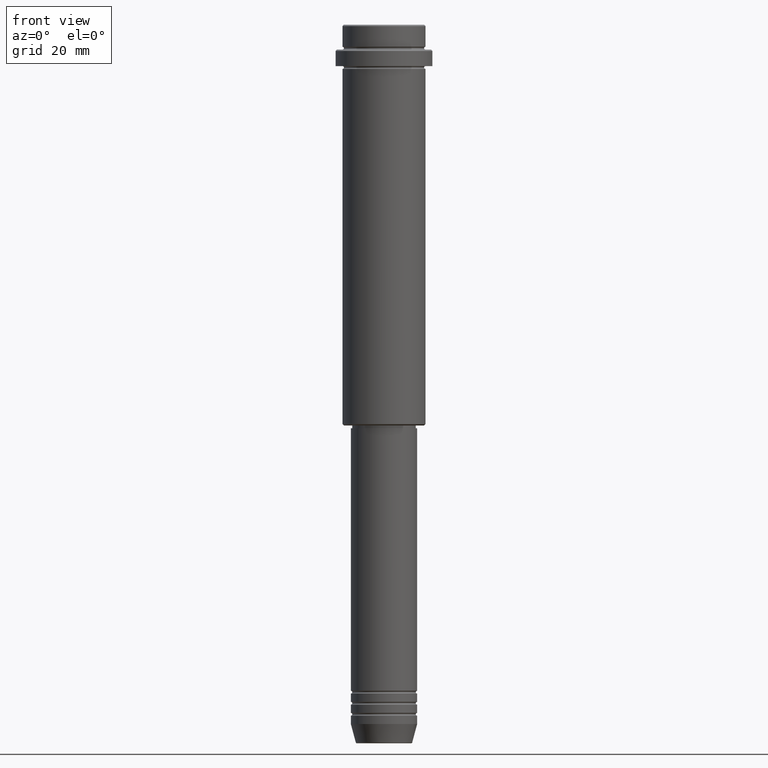
[diagram: clean part render]
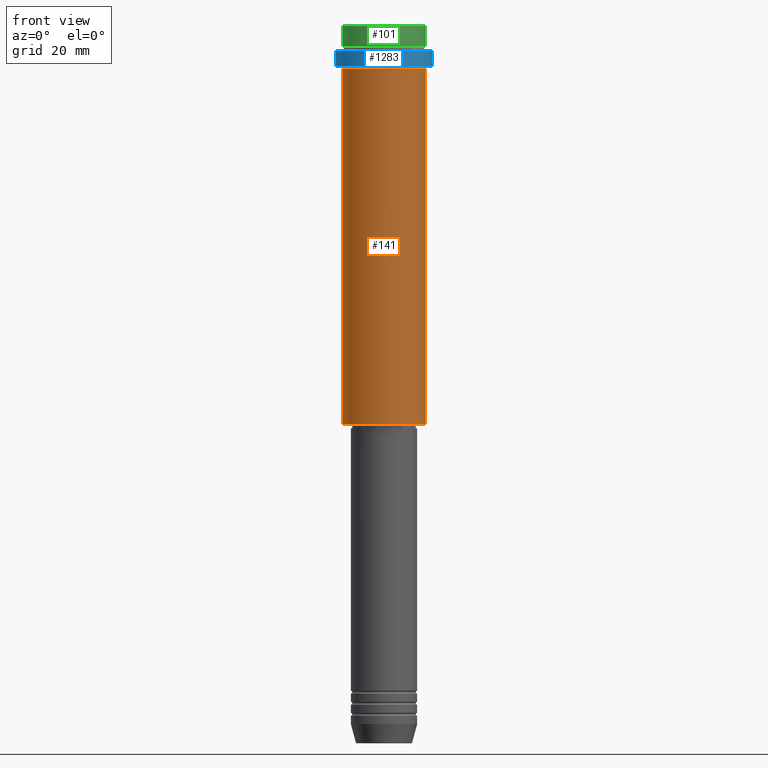
[diagram: same view with three faces highlighted in distinct colors, each labeled with its STEP entity id]
A machine part, front view with three faces highlighted in distinct colors.
Their STEP definitions:

[orange] entity #141 — the highlighted cylindrical surface (partial cylindrical patch) has radius 15 mm, axis along (-0, -0, 1).
#46 = DIRECTION ( 'NONE',  ( -0.000000000000000000, -0.000000000000000000, 1.000000000000000000 ) ) ;
#78 = VERTEX_POINT ( 'NONE', #553 ) ;
#141 = ADVANCED_FACE ( 'NONE', ( #1106 ), #1044, .T. ) ;
#149 = EDGE_CURVE ( 'NONE', #614, #78, #752, .T. ) ;
#166 = ORIENTED_EDGE ( 'NONE', *, *, #975, .T. ) ;
#174 = EDGE_LOOP ( 'NONE', ( #299, #456, #166, #576 ) ) ;
#248 = VECTOR ( 'NONE', #669, 1000.000000000000000 ) ;
#284 = DIRECTION ( 'NONE',  ( 1.000000000000000000, 0.000000000000000000, 0.000000000000000000 ) ) ;
#296 = CIRCLE ( 'NONE', #1095, 15.00000000000000000 ) ;
#299 = ORIENTED_EDGE ( 'NONE', *, *, #770, .F. ) ;
#386 = CARTESIAN_POINT ( 'NONE',  ( 0.000000000000000000, 0.000000000000000000, -16.00000000000000000 ) ) ;
#396 = CARTESIAN_POINT ( 'NONE',  ( -15.00000000000000000, 1.836970198721029589E-15, -144.5000000000000284 ) ) ;
#456 = ORIENTED_EDGE ( 'NONE', *, *, #1272, .T. ) ;
#457 = VECTOR ( 'NONE', #46, 1000.000000000000000 ) ;
#481 = CARTESIAN_POINT ( 'NONE',  ( 15.00000000000000000, 0.000000000000000000, -144.5000000000000284 ) ) ;
#553 = CARTESIAN_POINT ( 'NONE',  ( 15.00000000000000178, 0.000000000000000000, -16.00000000000000000 ) ) ;
#564 = CARTESIAN_POINT ( 'NONE',  ( -15.00000000000000000, 1.836970198721029589E-15, 0.000000000000000000 ) ) ;
#576 = ORIENTED_EDGE ( 'NONE', *, *, #149, .F. ) ;
#584 = CARTESIAN_POINT ( 'NONE',  ( 15.00000000000000000, 0.000000000000000000, 0.000000000000000000 ) ) ;
#614 = VERTEX_POINT ( 'NONE', #1034 ) ;
#669 = DIRECTION ( 'NONE',  ( -0.000000000000000000, -0.000000000000000000, 1.000000000000000000 ) ) ;
#712 = DIRECTION ( 'NONE',  ( -1.000000000000000000, 0.000000000000000000, 0.000000000000000000 ) ) ;
#752 = CIRCLE ( 'NONE', #1345, 15.00000000000000178 ) ;
#770 = EDGE_CURVE ( 'NONE', #1330, #614, #1175, .T. ) ;
#775 = AXIS2_PLACEMENT_3D ( 'NONE', #944, #1242, #841 ) ;
#841 = DIRECTION ( 'NONE',  ( 1.000000000000000000, 0.000000000000000000, 0.000000000000000000 ) ) ;
#844 = CARTESIAN_POINT ( 'NONE',  ( 0.000000000000000000, 0.000000000000000000, -144.5000000000000284 ) ) ;
#930 = DIRECTION ( 'NONE',  ( -0.000000000000000000, -0.000000000000000000, 1.000000000000000000 ) ) ;
#944 = CARTESIAN_POINT ( 'NONE',  ( 0.000000000000000000, 0.000000000000000000, 0.000000000000000000 ) ) ;
#975 = EDGE_CURVE ( 'NONE', #1280, #78, #1030, .T. ) ;
#1030 = LINE ( 'NONE', #584, #457 ) ;
#1034 = CARTESIAN_POINT ( 'NONE',  ( -15.00000000000000355, 1.836970198721029983E-15, -16.00000000000000000 ) ) ;
#1044 = CYLINDRICAL_SURFACE ( 'NONE', #775, 15.00000000000000000 ) ;
#1095 = AXIS2_PLACEMENT_3D ( 'NONE', #844, #930, #712 ) ;
#1106 = FACE_OUTER_BOUND ( 'NONE', #174, .T. ) ;
#1175 = LINE ( 'NONE', #564, #248 ) ;
#1242 = DIRECTION ( 'NONE',  ( -0.000000000000000000, -0.000000000000000000, 1.000000000000000000 ) ) ;
#1264 = DIRECTION ( 'NONE',  ( -0.000000000000000000, -0.000000000000000000, 1.000000000000000000 ) ) ;
#1272 = EDGE_CURVE ( 'NONE', #1330, #1280, #296, .T. ) ;
#1280 = VERTEX_POINT ( 'NONE', #481 ) ;
#1330 = VERTEX_POINT ( 'NONE', #396 ) ;
#1345 = AXIS2_PLACEMENT_3D ( 'NONE', #386, #1264, #284 ) ;

[blue] entity #1283 — the highlighted cylindrical surface (partial cylindrical patch) has radius 17.5 mm, axis along (-0, -0, 1).
#41 = CIRCLE ( 'NONE', #453, 17.50000000000000000 ) ;
#64 = CARTESIAN_POINT ( 'NONE',  ( -17.50000000000000000, 2.143131898507868248E-15, -9.500000000000001776 ) ) ;
#68 = VECTOR ( 'NONE', #694, 1000.000000000000000 ) ;
#93 = VERTEX_POINT ( 'NONE', #64 ) ;
#129 = CARTESIAN_POINT ( 'NONE',  ( 17.50000000000000000, 0.000000000000000000, -9.500000000000001776 ) ) ;
#161 = DIRECTION ( 'NONE',  ( -0.000000000000000000, -0.000000000000000000, 1.000000000000000000 ) ) ;
#201 = DIRECTION ( 'NONE',  ( -0.000000000000000000, -0.000000000000000000, 1.000000000000000000 ) ) ;
#229 = ORIENTED_EDGE ( 'NONE', *, *, #821, .F. ) ;
#288 = VERTEX_POINT ( 'NONE', #129 ) ;
#314 = CIRCLE ( 'NONE', #1048, 17.50000000000000000 ) ;
#342 = CARTESIAN_POINT ( 'NONE',  ( 0.000000000000000000, 0.000000000000000000, -15.00000000000000178 ) ) ;
#373 = CYLINDRICAL_SURFACE ( 'NONE', #1010, 17.50000000000000000 ) ;
#388 = EDGE_CURVE ( 'NONE', #288, #93, #314, .T. ) ;
#453 = AXIS2_PLACEMENT_3D ( 'NONE', #342, #201, #1195 ) ;
#465 = VERTEX_POINT ( 'NONE', #1015 ) ;
#498 = DIRECTION ( 'NONE',  ( 1.000000000000000000, 0.000000000000000000, 0.000000000000000000 ) ) ;
#533 = EDGE_CURVE ( 'NONE', #870, #465, #41, .T. ) ;
#558 = VECTOR ( 'NONE', #1237, 1000.000000000000000 ) ;
#611 = CARTESIAN_POINT ( 'NONE',  ( 0.000000000000000000, 0.000000000000000000, 0.000000000000000000 ) ) ;
#694 = DIRECTION ( 'NONE',  ( -0.000000000000000000, -0.000000000000000000, 1.000000000000000000 ) ) ;
#720 = ORIENTED_EDGE ( 'NONE', *, *, #533, .T. ) ;
#735 = EDGE_LOOP ( 'NONE', ( #229, #720, #1172, #849 ) ) ;
#791 = CARTESIAN_POINT ( 'NONE',  ( -17.50000000000000000, 2.143131898507868248E-15, 0.000000000000000000 ) ) ;
#821 = EDGE_CURVE ( 'NONE', #870, #93, #1300, .T. ) ;
#836 = EDGE_CURVE ( 'NONE', #465, #288, #1371, .T. ) ;
#839 = CARTESIAN_POINT ( 'NONE',  ( 17.50000000000000000, 0.000000000000000000, 0.000000000000000000 ) ) ;
#849 = ORIENTED_EDGE ( 'NONE', *, *, #388, .T. ) ;
#870 = VERTEX_POINT ( 'NONE', #1252 ) ;
#1010 = AXIS2_PLACEMENT_3D ( 'NONE', #611, #161, #498 ) ;
#1015 = CARTESIAN_POINT ( 'NONE',  ( 17.50000000000000000, 0.000000000000000000, -15.00000000000000178 ) ) ;
#1037 = DIRECTION ( 'NONE',  ( 1.000000000000000000, 0.000000000000000000, 0.000000000000000000 ) ) ;
#1048 = AXIS2_PLACEMENT_3D ( 'NONE', #1334, #1111, #1037 ) ;
#1111 = DIRECTION ( 'NONE',  ( 0.000000000000000000, 0.000000000000000000, -1.000000000000000000 ) ) ;
#1172 = ORIENTED_EDGE ( 'NONE', *, *, #836, .T. ) ;
#1195 = DIRECTION ( 'NONE',  ( 1.000000000000000000, 0.000000000000000000, 0.000000000000000000 ) ) ;
#1237 = DIRECTION ( 'NONE',  ( -0.000000000000000000, -0.000000000000000000, 1.000000000000000000 ) ) ;
#1252 = CARTESIAN_POINT ( 'NONE',  ( -17.50000000000000000, 2.143131898507868248E-15, -15.00000000000000178 ) ) ;
#1268 = FACE_OUTER_BOUND ( 'NONE', #735, .T. ) ;
#1283 = ADVANCED_FACE ( 'NONE', ( #1268 ), #373, .T. ) ;
#1300 = LINE ( 'NONE', #791, #68 ) ;
#1334 = CARTESIAN_POINT ( 'NONE',  ( 0.000000000000000000, 0.000000000000000000, -9.500000000000001776 ) ) ;
#1371 = LINE ( 'NONE', #839, #558 ) ;

[green] entity #101 — the highlighted cylindrical surface (partial cylindrical patch) has radius 15 mm, axis along (-0, -0, 1).
#26 = DIRECTION ( 'NONE',  ( 1.000000000000000000, 0.000000000000000000, 0.000000000000000000 ) ) ;
#30 = DIRECTION ( 'NONE',  ( -0.000000000000000000, -0.000000000000000000, 1.000000000000000000 ) ) ;
#101 = ADVANCED_FACE ( 'NONE', ( #992 ), #114, .T. ) ;
#106 = AXIS2_PLACEMENT_3D ( 'NONE', #581, #1009, #26 ) ;
#114 = CYLINDRICAL_SURFACE ( 'NONE', #664, 15.00000000000000000 ) ;
#125 = ORIENTED_EDGE ( 'NONE', *, *, #469, .F. ) ;
#177 = DIRECTION ( 'NONE',  ( -0.000000000000000000, -0.000000000000000000, 1.000000000000000000 ) ) ;
#194 = AXIS2_PLACEMENT_3D ( 'NONE', #970, #177, #725 ) ;
#226 = EDGE_CURVE ( 'NONE', #618, #1060, #267, .T. ) ;
#267 = CIRCLE ( 'NONE', #106, 15.00000000000000000 ) ;
#315 = VECTOR ( 'NONE', #610, 1000.000000000000000 ) ;
#325 = ORIENTED_EDGE ( 'NONE', *, *, #226, .T. ) ;
#344 = LINE ( 'NONE', #1002, #381 ) ;
#379 = ORIENTED_EDGE ( 'NONE', *, *, #740, .T. ) ;
#381 = VECTOR ( 'NONE', #30, 1000.000000000000000 ) ;
#434 = CARTESIAN_POINT ( 'NONE',  ( 0.000000000000000000, 0.000000000000000000, 0.000000000000000000 ) ) ;
#458 = CARTESIAN_POINT ( 'NONE',  ( 15.00000000000000000, 0.000000000000000000, -7.999999999999998224 ) ) ;
#469 = EDGE_CURVE ( 'NONE', #1337, #1060, #344, .T. ) ;
#483 = CIRCLE ( 'NONE', #194, 15.00000000000000000 ) ;
#581 = CARTESIAN_POINT ( 'NONE',  ( 0.000000000000000000, 0.000000000000000000, -0.5000000000000108802 ) ) ;
#610 = DIRECTION ( 'NONE',  ( -0.000000000000000000, -0.000000000000000000, 1.000000000000000000 ) ) ;
#618 = VERTEX_POINT ( 'NONE', #937 ) ;
#664 = AXIS2_PLACEMENT_3D ( 'NONE', #434, #888, #1174 ) ;
#677 = EDGE_CURVE ( 'NONE', #1337, #1036, #483, .T. ) ;
#725 = DIRECTION ( 'NONE',  ( 1.000000000000000000, 0.000000000000000000, 0.000000000000000000 ) ) ;
#740 = EDGE_CURVE ( 'NONE', #1036, #618, #822, .T. ) ;
#822 = LINE ( 'NONE', #1236, #315 ) ;
#888 = DIRECTION ( 'NONE',  ( -0.000000000000000000, -0.000000000000000000, 1.000000000000000000 ) ) ;
#937 = CARTESIAN_POINT ( 'NONE',  ( 15.00000000000000000, 0.000000000000000000, -0.5000000000000108802 ) ) ;
#970 = CARTESIAN_POINT ( 'NONE',  ( 0.000000000000000000, 0.000000000000000000, -7.999999999999998224 ) ) ;
#992 = FACE_OUTER_BOUND ( 'NONE', #1180, .T. ) ;
#1002 = CARTESIAN_POINT ( 'NONE',  ( -15.00000000000000000, 1.836970198721029589E-15, 0.000000000000000000 ) ) ;
#1009 = DIRECTION ( 'NONE',  ( 0.000000000000000000, 0.000000000000000000, -1.000000000000000000 ) ) ;
#1036 = VERTEX_POINT ( 'NONE', #458 ) ;
#1047 = ORIENTED_EDGE ( 'NONE', *, *, #677, .T. ) ;
#1060 = VERTEX_POINT ( 'NONE', #1104 ) ;
#1104 = CARTESIAN_POINT ( 'NONE',  ( -15.00000000000000000, 1.836970198721029589E-15, -0.5000000000000108802 ) ) ;
#1174 = DIRECTION ( 'NONE',  ( 1.000000000000000000, 0.000000000000000000, 0.000000000000000000 ) ) ;
#1180 = EDGE_LOOP ( 'NONE', ( #125, #1047, #379, #325 ) ) ;
#1236 = CARTESIAN_POINT ( 'NONE',  ( 15.00000000000000000, 0.000000000000000000, 0.000000000000000000 ) ) ;
#1314 = CARTESIAN_POINT ( 'NONE',  ( -15.00000000000000000, 1.836970198721029589E-15, -7.999999999999998224 ) ) ;
#1337 = VERTEX_POINT ( 'NONE', #1314 ) ;